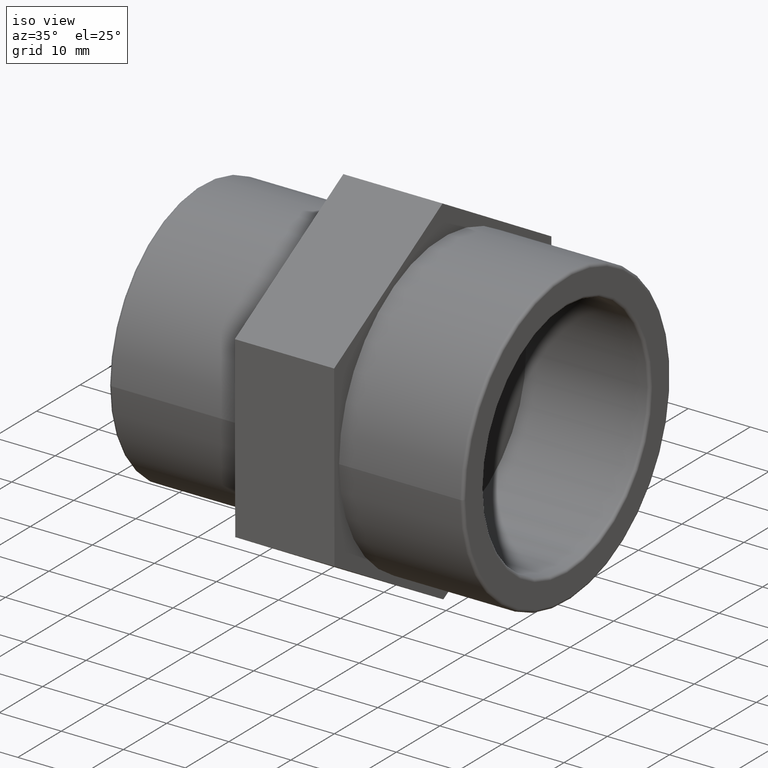
[diagram: clean part render]
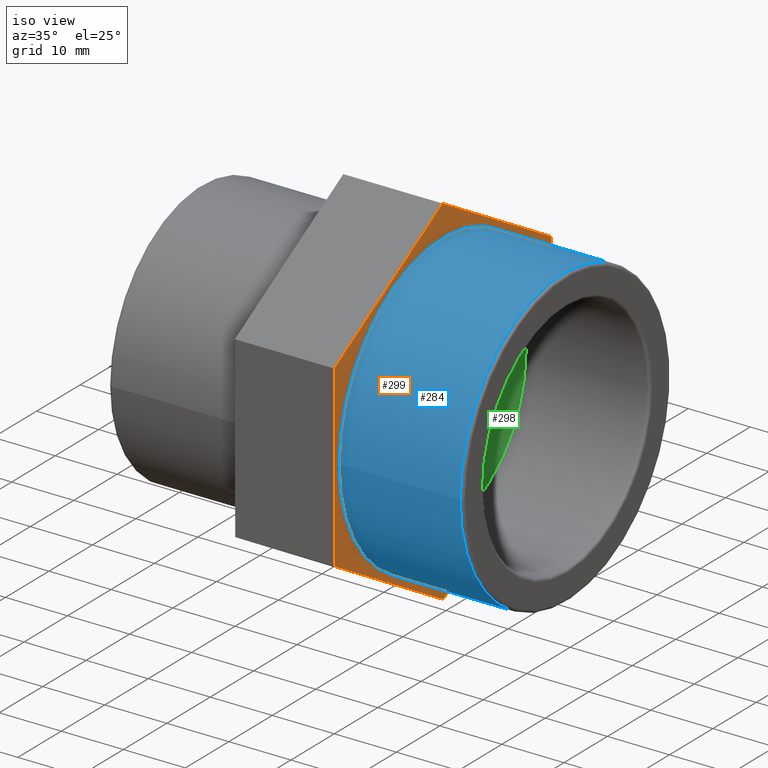
[diagram: same view with three faces highlighted in distinct colors, each labeled with its STEP entity id]
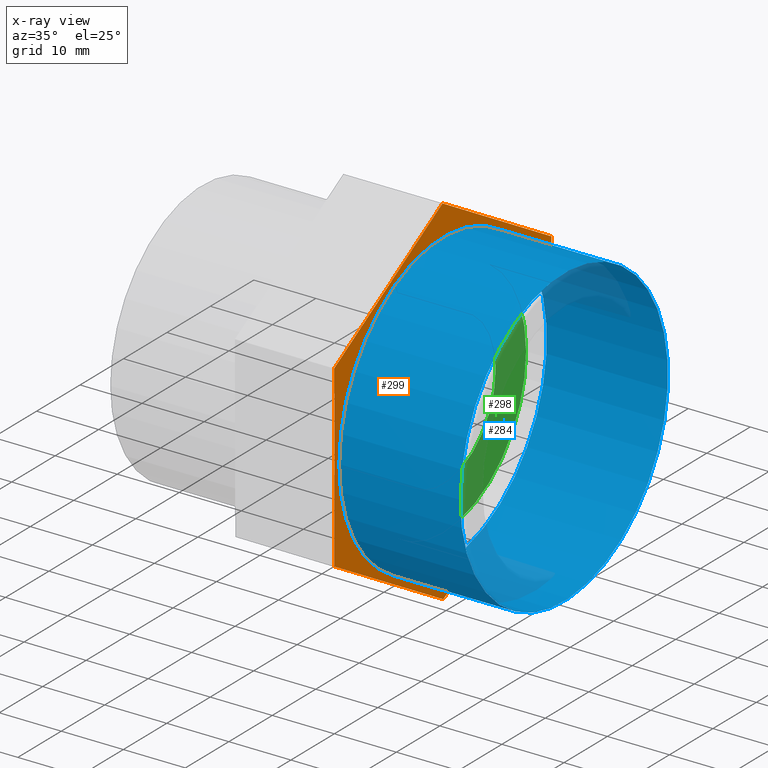
[diagram: x-ray of the same camera — body ghosted, the three highlighted faces saturated]
A machine part, iso view with three faces highlighted in distinct colors.
The next image is the same camera in x-ray (body ghosted, the three faces saturated) — at least one of them is partly hidden behind the body in this view.
Their STEP definitions:

[orange] entity #299 — the highlighted planar face has unit normal (1, 0, 0).
#17=LINE('',#470,#35);
#21=LINE('',#477,#39);
#24=LINE('',#483,#42);
#27=LINE('',#491,#45);
#30=LINE('',#495,#48);
#32=LINE('',#498,#50);
#35=VECTOR('',#388,28.8675134594813);
#39=VECTOR('',#394,28.8675134594813);
#42=VECTOR('',#399,28.8675134594813);
#45=VECTOR('',#404,28.8675134594813);
#48=VECTOR('',#409,28.8675134594813);
#50=VECTOR('',#413,28.8675134594813);
#66=PLANE('',#336);
#81=FACE_BOUND('',#137,.T.);
#102=FACE_OUTER_BOUND('',#136,.T.);
#136=EDGE_LOOP('',(#262,#263,#264,#265,#266,#267));
#137=EDGE_LOOP('',(#268));
#145=CIRCLE('',#313,23.9015);
#159=VERTEX_POINT('',#444);
#168=VERTEX_POINT('',#467);
#169=VERTEX_POINT('',#469);
#171=VERTEX_POINT('',#475);
#173=VERTEX_POINT('',#481);
#176=VERTEX_POINT('',#488);
#177=VERTEX_POINT('',#490);
#185=EDGE_CURVE('',#159,#159,#145,.T.);
#194=EDGE_CURVE('',#168,#169,#17,.T.);
#198=EDGE_CURVE('',#171,#168,#21,.T.);
#201=EDGE_CURVE('',#173,#171,#24,.T.);
#204=EDGE_CURVE('',#176,#177,#27,.T.);
#207=EDGE_CURVE('',#169,#176,#30,.T.);
#209=EDGE_CURVE('',#177,#173,#32,.T.);
#262=ORIENTED_EDGE('',*,*,#207,.F.);
#263=ORIENTED_EDGE('',*,*,#194,.F.);
#264=ORIENTED_EDGE('',*,*,#198,.F.);
#265=ORIENTED_EDGE('',*,*,#201,.F.);
#266=ORIENTED_EDGE('',*,*,#209,.F.);
#267=ORIENTED_EDGE('',*,*,#204,.F.);
#268=ORIENTED_EDGE('',*,*,#185,.T.);
#299=ADVANCED_FACE('',(#102,#81),#66,.T.);
#313=AXIS2_PLACEMENT_3D('',#445,#360,#361);
#336=AXIS2_PLACEMENT_3D('',#506,#424,#425);
#360=DIRECTION('center_axis',(-1.,-1.83697019872103E-16,0.));
#361=DIRECTION('ref_axis',(0.,0.,1.));
#388=DIRECTION('',(5.44336326563799E-19,-0.00296322894591751,0.999995609627469));
#394=DIRECTION('',(1.59357755523959E-16,-0.867503216083255,0.497431573269339));
#399=DIRECTION('',(1.58813419197395E-16,-0.864539987137336,-0.502564036358129));
#404=DIRECTION('',(-1.59357755523959E-16,0.867503216083254,-0.49743157326934));
#409=DIRECTION('',(-1.58813419197395E-16,0.864539987137336,0.50256403635813));
#413=DIRECTION('',(-5.44336326564082E-19,0.00296322894591905,-0.999995609627469));
#424=DIRECTION('center_axis',(1.,1.83697019872103E-16,0.));
#425=DIRECTION('ref_axis',(0.,0.,-1.));
#444=CARTESIAN_POINT('',(9.50000000000001,-23.9015,0.));
#445=CARTESIAN_POINT('Origin',(9.50000000000001,7.16418377501202E-15,0.));
#467=CARTESIAN_POINT('',(9.50000000000001,-24.9571197149469,-14.5077740838196));
#469=CARTESIAN_POINT('',(9.50000000000001,-25.0426607664267,14.3596126365236));
#470=CARTESIAN_POINT('',(9.50000000000001,-24.9571197149469,-14.5077740838196));
#475=CARTESIAN_POINT('',(9.50000000000001,0.0855410514798307,-28.8673867203432));
#477=CARTESIAN_POINT('',(9.50000000000001,0.0855410514798307,-28.8673867203432));
#481=CARTESIAN_POINT('',(9.5,25.0426607664267,-14.3596126365236));
#483=CARTESIAN_POINT('',(9.5,25.0426607664267,-14.3596126365236));
#488=CARTESIAN_POINT('',(9.50000000000001,-0.0855410514798229,28.8673867203432));
#490=CARTESIAN_POINT('',(9.5,24.9571197149468,14.5077740838195));
#491=CARTESIAN_POINT('',(9.50000000000001,-0.0855410514798229,28.8673867203432));
#495=CARTESIAN_POINT('',(9.50000000000001,-25.0426607664267,14.3596126365236));
#498=CARTESIAN_POINT('',(9.5,24.9571197149468,14.5077740838195));
#506=CARTESIAN_POINT('Origin',(9.50000000000001,-25.,0.));

[blue] entity #284 — the highlighted cylindrical surface (bore or boss wall) has radius 23.9015 mm, axis along (-1, -0, 0).
#52=CYLINDRICAL_SURFACE('',#312,23.9015);
#72=FACE_BOUND('',#113,.T.);
#87=FACE_OUTER_BOUND('',#112,.T.);
#112=EDGE_LOOP('',(#220));
#113=EDGE_LOOP('',(#221));
#144=CIRCLE('',#311,23.9015);
#145=CIRCLE('',#313,23.9015);
#158=VERTEX_POINT('',#441);
#159=VERTEX_POINT('',#444);
#184=EDGE_CURVE('',#158,#158,#144,.T.);
#185=EDGE_CURVE('',#159,#159,#145,.T.);
#220=ORIENTED_EDGE('',*,*,#185,.F.);
#221=ORIENTED_EDGE('',*,*,#184,.F.);
#284=ADVANCED_FACE('',(#87,#72),#52,.T.);
#311=AXIS2_PLACEMENT_3D('',#442,#356,#357);
#312=AXIS2_PLACEMENT_3D('',#443,#358,#359);
#313=AXIS2_PLACEMENT_3D('',#445,#360,#361);
#356=DIRECTION('center_axis',(1.,1.83697019872103E-16,0.));
#357=DIRECTION('ref_axis',(-1.82896603119535E-16,1.,6.12323399573677E-17));
#358=DIRECTION('center_axis',(-1.,-1.83697019872103E-16,0.));
#359=DIRECTION('ref_axis',(2.19911463726881E-16,-1.,0.));
#360=DIRECTION('center_axis',(-1.,-1.83697019872103E-16,0.));
#361=DIRECTION('ref_axis',(0.,0.,1.));
#441=CARTESIAN_POINT('',(29.02197,-23.9015,-4.39063432047307E-15));
#442=CARTESIAN_POINT('Origin',(29.02197,1.07503114860446E-14,0.));
#443=CARTESIAN_POINT('Origin',(19.5,9.00115397373305E-15,0.));
#444=CARTESIAN_POINT('',(9.50000000000001,-23.9015,0.));
#445=CARTESIAN_POINT('Origin',(9.50000000000001,7.16418377501202E-15,0.));

[green] entity #298 — the highlighted planar face has unit normal (1, 0, 0).
#65=PLANE('',#335);
#80=FACE_BOUND('',#135,.T.);
#101=FACE_OUTER_BOUND('',#134,.T.);
#134=EDGE_LOOP('',(#260));
#135=EDGE_LOOP('',(#261));
#143=CIRCLE('',#309,19.1212);
#153=CIRCLE('',#334,12.1164);
#157=VERTEX_POINT('',#438);
#179=VERTEX_POINT('',#503);
#183=EDGE_CURVE('',#157,#157,#143,.T.);
#211=EDGE_CURVE('',#179,#179,#153,.T.);
#260=ORIENTED_EDGE('',*,*,#183,.F.);
#261=ORIENTED_EDGE('',*,*,#211,.T.);
#298=ADVANCED_FACE('',(#101,#80),#65,.T.);
#309=AXIS2_PLACEMENT_3D('',#439,#352,#353);
#334=AXIS2_PLACEMENT_3D('',#504,#420,#421);
#335=AXIS2_PLACEMENT_3D('',#505,#422,#423);
#352=DIRECTION('center_axis',(-1.,-1.83697019872103E-16,0.));
#353=DIRECTION('ref_axis',(0.,0.,1.));
#420=DIRECTION('center_axis',(-1.,-1.83697019872103E-16,0.));
#421=DIRECTION('ref_axis',(0.,0.,1.));
#422=DIRECTION('center_axis',(1.,1.83697019872103E-16,0.));
#423=DIRECTION('ref_axis',(0.,0.,-1.));
#438=CARTESIAN_POINT('',(9.50000000000001,-19.1212,0.));
#439=CARTESIAN_POINT('Origin',(9.50000000000001,7.16418377501202E-15,0.));
#503=CARTESIAN_POINT('',(9.50000000000001,-12.1164,0.));
#504=CARTESIAN_POINT('Origin',(9.5,7.16418377501202E-15,0.));
#505=CARTESIAN_POINT('Origin',(9.50000000000001,-19.1212,0.));